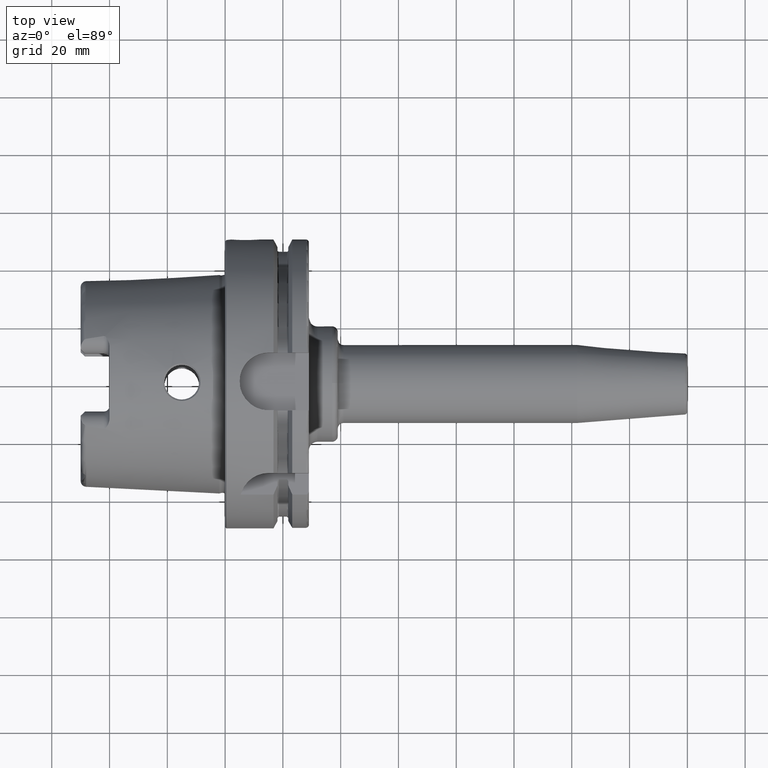
[diagram: clean part render]
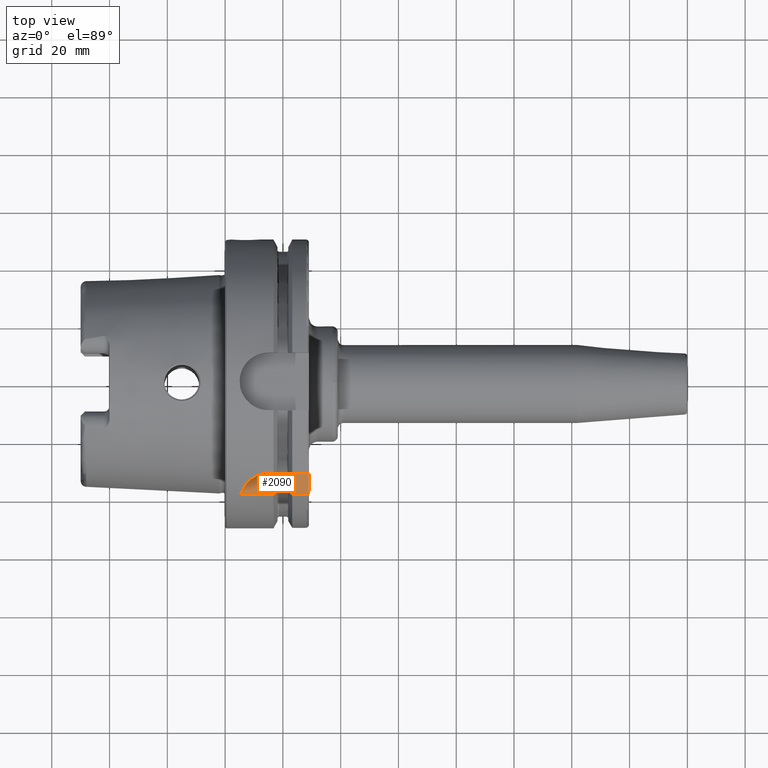
[diagram: same view with one face highlighted and labeled with its STEP entity id]
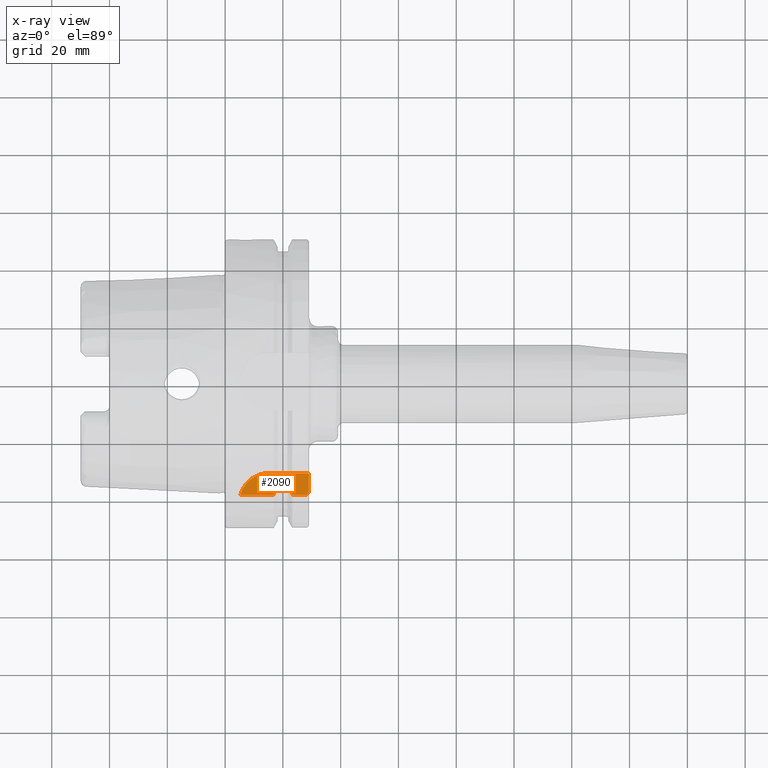
[diagram: x-ray of the same camera — body ghosted, the highlighted face saturated]
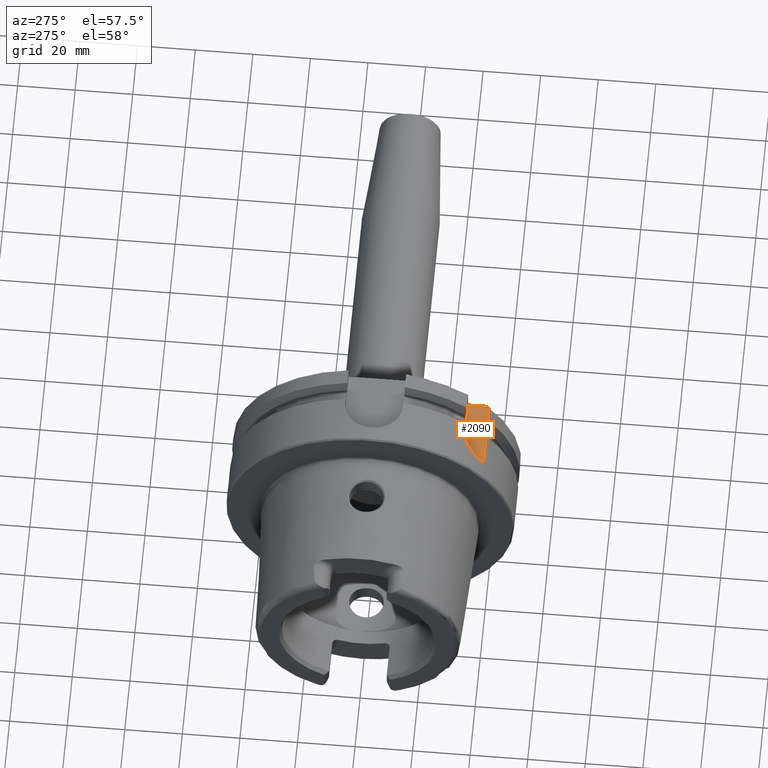
[diagram: same view with one face highlighted and labeled with its STEP entity id]
A machine part, top view. The second image highlights one B-rep face of the part: STEP entity #2090.
The next image is the same camera in x-ray: the body ghosted, the highlighted face saturated — about 0% of this face is hidden behind the body in this view.
A second angle (auxiliary view) of the same face is appended — the face is thin or edge-on in the first view.
In plain terms, the highlighted planar face has unit normal (0, 0, 1).
Its self-contained STEP definition (entity closure, byte-faithful):
#19=(
BOUNDED_CURVE()
B_SPLINE_CURVE(2,(#4096,#4097,#4098),.UNSPECIFIED.,.F.,.F.)
B_SPLINE_CURVE_WITH_KNOTS((3,3),(0.,0.343884390880417),.UNSPECIFIED.)
CURVE()
GEOMETRIC_REPRESENTATION_ITEM()
RATIONAL_B_SPLINE_CURVE((1.,1.00052016257104,1.))
REPRESENTATION_ITEM('')
);
#20=(
BOUNDED_CURVE()
B_SPLINE_CURVE(2,(#4128,#4129,#4130),.UNSPECIFIED.,.F.,.F.)
B_SPLINE_CURVE_WITH_KNOTS((3,3),(0.,0.343884390880419),.UNSPECIFIED.)
CURVE()
GEOMETRIC_REPRESENTATION_ITEM()
RATIONAL_B_SPLINE_CURVE((1.,1.00052016257005,1.))
REPRESENTATION_ITEM('')
);
#62=B_SPLINE_CURVE_WITH_KNOTS('',3,(#4102,#4103,#4104,#4105,#4106,#4107,
#4108,#4109,#4110,#4111),.UNSPECIFIED.,.F.,.F.,(4,2,2,2,4),(-0.175716275951496,
-0.15902214964786,-0.139262857016594,-0.115342898112829,-0.0876407705892815),
 .UNSPECIFIED.);
#63=B_SPLINE_CURVE_WITH_KNOTS('',3,(#4115,#4116,#4117,#4118,#4119,#4120,
#4121,#4122,#4123,#4124),.UNSPECIFIED.,.F.,.F.,(4,2,2,2,4),(0.0876407705892814,
0.115342898112828,0.139262857016592,0.15902214964786,0.175716275951495),
 .UNSPECIFIED.);
#64=B_SPLINE_CURVE_WITH_KNOTS('',3,(#4133,#4134,#4135,#4136,#4137,#4138,
#4139,#4140,#4141,#4142),.UNSPECIFIED.,.F.,.F.,(4,2,2,2,4),(-0.170825962094808,
-0.118543630596578,-0.0729156509442915,-0.0340271521483428,0.),
 .UNSPECIFIED.);
#114=PLANE('',#2310);
#260=FACE_OUTER_BOUND('',#393,.T.);
#393=EDGE_LOOP('',(#1626,#1627,#1628,#1629,#1630,#1631,#1632,#1633,#1634,
#1635,#1636,#1637,#1638));
#484=LINE('',#3196,#592);
#523=LINE('',#4043,#631);
#528=LINE('',#4094,#636);
#529=LINE('',#4100,#637);
#530=LINE('',#4113,#638);
#531=LINE('',#4126,#639);
#532=LINE('',#4132,#640);
#592=VECTOR('',#2558,10.);
#631=VECTOR('',#2751,10.);
#636=VECTOR('',#2758,10.);
#637=VECTOR('',#2759,10.);
#638=VECTOR('',#2760,10.);
#639=VECTOR('',#2761,10.);
#640=VECTOR('',#2762,10.);
#756=CIRCLE('',#2308,10.);
#856=VERTEX_POINT('',#3194);
#857=VERTEX_POINT('',#3195);
#943=VERTEX_POINT('',#4023);
#945=VERTEX_POINT('',#4037);
#955=VERTEX_POINT('',#4093);
#956=VERTEX_POINT('',#4095);
#957=VERTEX_POINT('',#4099);
#958=VERTEX_POINT('',#4101);
#959=VERTEX_POINT('',#4112);
#960=VERTEX_POINT('',#4114);
#961=VERTEX_POINT('',#4125);
#962=VERTEX_POINT('',#4127);
#963=VERTEX_POINT('',#4131);
#1080=EDGE_CURVE('',#856,#857,#484,.T.);
#1195=EDGE_CURVE('',#945,#943,#756,.T.);
#1198=EDGE_CURVE('',#856,#945,#523,.T.);
#1208=EDGE_CURVE('',#955,#943,#528,.T.);
#1209=EDGE_CURVE('',#956,#955,#19,.T.);
#1210=EDGE_CURVE('',#957,#956,#529,.T.);
#1211=EDGE_CURVE('',#958,#957,#62,.T.);
#1212=EDGE_CURVE('',#959,#958,#530,.T.);
#1213=EDGE_CURVE('',#960,#959,#63,.T.);
#1214=EDGE_CURVE('',#961,#960,#531,.T.);
#1215=EDGE_CURVE('',#962,#961,#20,.T.);
#1216=EDGE_CURVE('',#963,#962,#532,.T.);
#1217=EDGE_CURVE('',#857,#963,#64,.T.);
#1626=ORIENTED_EDGE('',*,*,#1208,.F.);
#1627=ORIENTED_EDGE('',*,*,#1209,.F.);
#1628=ORIENTED_EDGE('',*,*,#1210,.F.);
#1629=ORIENTED_EDGE('',*,*,#1211,.F.);
#1630=ORIENTED_EDGE('',*,*,#1212,.F.);
#1631=ORIENTED_EDGE('',*,*,#1213,.F.);
#1632=ORIENTED_EDGE('',*,*,#1214,.F.);
#1633=ORIENTED_EDGE('',*,*,#1215,.F.);
#1634=ORIENTED_EDGE('',*,*,#1216,.F.);
#1635=ORIENTED_EDGE('',*,*,#1217,.F.);
#1636=ORIENTED_EDGE('',*,*,#1080,.F.);
#1637=ORIENTED_EDGE('',*,*,#1198,.T.);
#1638=ORIENTED_EDGE('',*,*,#1195,.T.);
#2090=ADVANCED_FACE('',(#260),#114,.T.);
#2308=AXIS2_PLACEMENT_3D('',#4038,#2745,#2746);
#2310=AXIS2_PLACEMENT_3D('',#4092,#2756,#2757);
#2558=DIRECTION('',(0.,-1.,0.));
#2745=DIRECTION('center_axis',(0.,0.,1.));
#2746=DIRECTION('ref_axis',(0.,1.,0.));
#2751=DIRECTION('',(-1.,3.17206578464331E-16,0.));
#2756=DIRECTION('center_axis',(0.,0.,1.));
#2757=DIRECTION('ref_axis',(1.,0.,0.));
#2758=DIRECTION('',(-1.,0.,0.));
#2759=DIRECTION('',(0.,-1.,0.));
#2760=DIRECTION('',(-1.,0.,0.));
#2761=DIRECTION('',(0.,1.,0.));
#2762=DIRECTION('',(-1.,0.,0.));
#3194=CARTESIAN_POINT('',(29.,-31.5,31.5));
#3195=CARTESIAN_POINT('',(29.,-37.5333185316726,31.5));
#3196=CARTESIAN_POINT('',(29.,-18.25,31.5));
#4023=CARTESIAN_POINT('',(5.36310214079494,-38.8297566307078,31.5));
#4037=CARTESIAN_POINT('',(15.,-31.5,31.5));
#4038=CARTESIAN_POINT('Origin',(15.,-41.5,31.5));
#4043=CARTESIAN_POINT('',(29.,-31.5,31.5));
#4092=CARTESIAN_POINT('Origin',(17.,-36.5,31.5));
#4093=CARTESIAN_POINT('',(16.7379709790786,-38.8297566307078,31.5));
#4094=CARTESIAN_POINT('',(8.61898548953931,-38.8297566307078,31.5));
#4095=CARTESIAN_POINT('',(18.125,-35.6830642593065,31.5));
#4096=CARTESIAN_POINT('Ctrl Pts',(18.125,-35.6830642593066,31.5));
#4097=CARTESIAN_POINT('Ctrl Pts',(17.4607727557241,-37.2176818849689,31.5));
#4098=CARTESIAN_POINT('Ctrl Pts',(16.7379709790786,-38.8297566307079,31.5));
#4099=CARTESIAN_POINT('',(18.125,-34.2052627529741,31.5));
#4100=CARTESIAN_POINT('',(18.125,5.,31.5));
#4101=CARTESIAN_POINT('',(18.625,-33.5223805837235,31.5));
#4102=CARTESIAN_POINT('Ctrl Pts',(18.625,-33.5223805837235,31.5));
#4103=CARTESIAN_POINT('Ctrl Pts',(18.5693529123212,-33.5223805837235,31.5));
#4104=CARTESIAN_POINT('Ctrl Pts',(18.5045806209474,-33.538617945543,31.5));
#4105=CARTESIAN_POINT('Ctrl Pts',(18.3957531993943,-33.5926698815421,31.5));
#4106=CARTESIAN_POINT('Ctrl Pts',(18.3354671583148,-33.6437821851056,31.5));
#4107=CARTESIAN_POINT('Ctrl Pts',(18.2428076522704,-33.7560891280603,31.5));
#4108=CARTESIAN_POINT('Ctrl Pts',(18.1981986617216,-33.8407334953009,31.5));
#4109=CARTESIAN_POINT('Ctrl Pts',(18.1422893312478,-34.003470946295,31.5));
#4110=CARTESIAN_POINT('Ctrl Pts',(18.125,-34.1129223278956,31.5));
#4111=CARTESIAN_POINT('Ctrl Pts',(18.125,-34.2052627529741,31.5));
#4112=CARTESIAN_POINT('',(21.375,-33.5223805837235,31.5));
#4113=CARTESIAN_POINT('',(20.,-33.5223805837235,31.5));
#4114=CARTESIAN_POINT('',(21.875,-34.2052627529741,31.5));
#4115=CARTESIAN_POINT('Ctrl Pts',(21.875,-34.2052627529741,31.5));
#4116=CARTESIAN_POINT('Ctrl Pts',(21.875,-34.1129223278957,31.5));
#4117=CARTESIAN_POINT('Ctrl Pts',(21.8577106687523,-34.003470946295,31.5));
#4118=CARTESIAN_POINT('Ctrl Pts',(21.8018013382784,-33.8407334953009,31.5));
#4119=CARTESIAN_POINT('Ctrl Pts',(21.7571923477296,-33.7560891280604,31.5));
#4120=CARTESIAN_POINT('Ctrl Pts',(21.6645328416852,-33.6437821851056,31.5));
#4121=CARTESIAN_POINT('Ctrl Pts',(21.6042468006057,-33.5926698815421,31.5));
#4122=CARTESIAN_POINT('Ctrl Pts',(21.4954193790526,-33.538617945543,31.5));
#4123=CARTESIAN_POINT('Ctrl Pts',(21.4306470876788,-33.5223805837235,31.5));
#4124=CARTESIAN_POINT('Ctrl Pts',(21.375,-33.5223805837235,31.5));
#4125=CARTESIAN_POINT('',(21.875,-35.6830642593065,31.5));
#4126=CARTESIAN_POINT('',(21.875,5.54879763209582,31.5));
#4127=CARTESIAN_POINT('',(23.2620290209214,-38.8297566307078,31.5));
#4128=CARTESIAN_POINT('Ctrl Pts',(23.2620290209214,-38.8297566307078,31.5));
#4129=CARTESIAN_POINT('Ctrl Pts',(22.5392272442767,-37.2176818849707,31.5));
#4130=CARTESIAN_POINT('Ctrl Pts',(21.875,-35.6830642593065,31.5));
#4131=CARTESIAN_POINT('',(28.,-38.8297566307078,31.5));
#4132=CARTESIAN_POINT('',(25.6310145104607,-38.8297566307078,31.5));
#4133=CARTESIAN_POINT('Ctrl Pts',(29.,-37.5333185316726,31.5));
#4134=CARTESIAN_POINT('Ctrl Pts',(29.,-37.7075929700001,31.5));
#4135=CARTESIAN_POINT('Ctrl Pts',(28.9664820083304,-37.9140187901503,31.5));
#4136=CARTESIAN_POINT('Ctrl Pts',(28.8572425149189,-38.2215616508799,31.5));
#4137=CARTESIAN_POINT('Ctrl Pts',(28.7693181429129,-38.3814988424326,31.5));
#4138=CARTESIAN_POINT('Ctrl Pts',(28.5860354601279,-38.5954486383736,31.5));
#4139=CARTESIAN_POINT('Ctrl Pts',(28.4650491410143,-38.6932205975694,31.5));
#4140=CARTESIAN_POINT('Ctrl Pts',(28.2458099245109,-38.7981421072727,31.5));
#4141=CARTESIAN_POINT('Ctrl Pts',(28.1134238404945,-38.8297566307078,31.5));
#4142=CARTESIAN_POINT('Ctrl Pts',(28.,-38.8297566307078,31.5));